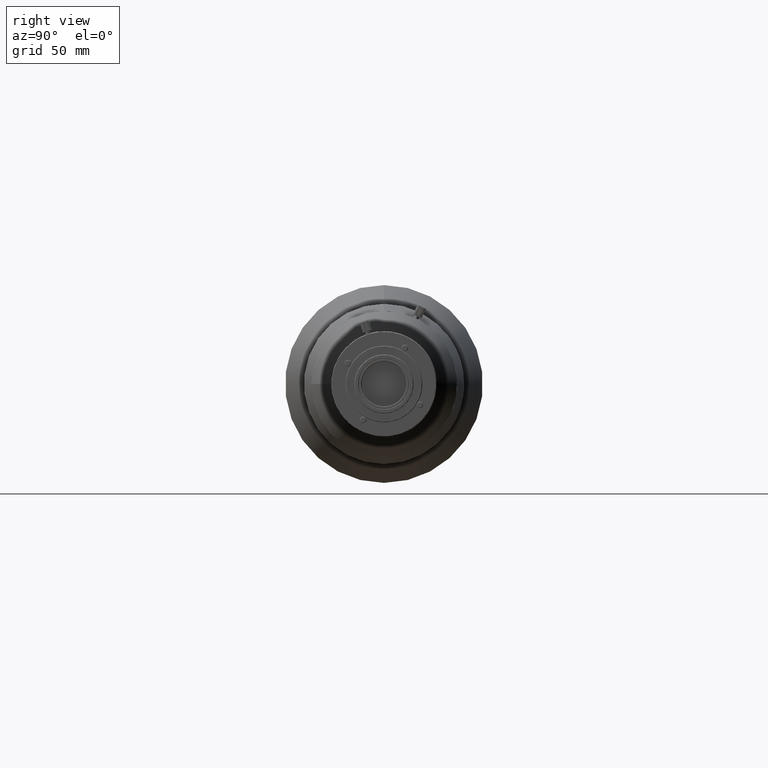
[diagram: clean part render]
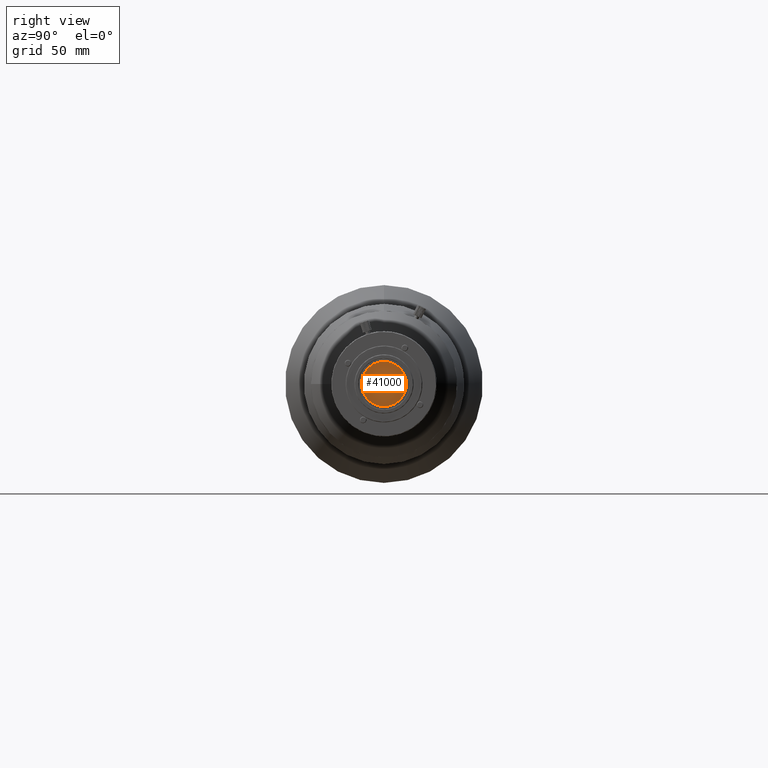
[diagram: same view with one face highlighted and labeled with its STEP entity id]
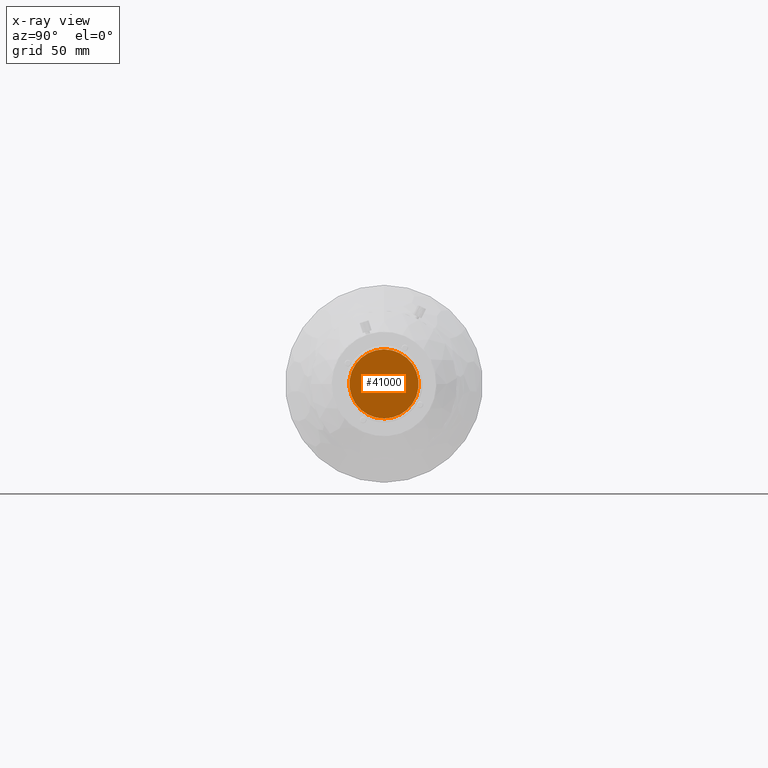
[diagram: x-ray of the same camera — body ghosted, the highlighted face saturated]
A machine part, right view. The second image highlights one B-rep face of the part: STEP entity #41000.
The next image is the same camera in x-ray: the body ghosted, the highlighted face saturated — about 0% of this face is hidden behind the body in this view.
In plain terms, the highlighted planar face has unit normal (1, 0, -0).
Its self-contained STEP definition (entity closure, byte-faithful):
#2252 = DIRECTION ( 'NONE',  ( 0.000000000000000000, 0.000000000000000000, 1.000000000000000000 ) ) ;
#5022 = CIRCLE ( 'NONE', #54641, 14.90000010070469116 ) ;
#7506 = VERTEX_POINT ( 'NONE', #19471 ) ;
#10593 = EDGE_CURVE ( 'NONE', #7506, #7506, #5022, .T. ) ;
#11942 = DIRECTION ( 'NONE',  ( 1.000000000000000000, 0.000000000000000000, -2.449293598294723178E-16 ) ) ;
#14442 = FACE_OUTER_BOUND ( 'NONE', #25118, .T. ) ;
#14716 = DIRECTION ( 'NONE',  ( -2.449293598294723178E-16, 0.000000000000000000, -1.000000000000000000 ) ) ;
#18102 = ORIENTED_EDGE ( 'NONE', *, *, #10593, .T. ) ;
#19471 = CARTESIAN_POINT ( 'NONE',  ( 198.7866793474756832, 10.19269740323192686, 169.3500000615899808 ) ) ;
#25118 = EDGE_LOOP ( 'NONE', ( #18102 ) ) ;
#27062 = AXIS2_PLACEMENT_3D ( 'NONE', #44150, #52201, #14716 ) ;
#35269 = PLANE ( 'NONE',  #27062 ) ;
#41000 = ADVANCED_FACE ( 'NONE', ( #14442 ), #35269, .T. ) ;
#41380 = CARTESIAN_POINT ( 'NONE',  ( 198.7866793474756832, 10.19269740323192686, 154.4499999608852931 ) ) ;
#44150 = CARTESIAN_POINT ( 'NONE',  ( 198.7866793474756832, 10.19269740323192686, 154.4499999608846394 ) ) ;
#52201 = DIRECTION ( 'NONE',  ( 1.000000000000000000, 0.000000000000000000, -2.449293598294723178E-16 ) ) ;
#54641 = AXIS2_PLACEMENT_3D ( 'NONE', #41380, #11942, #2252 ) ;